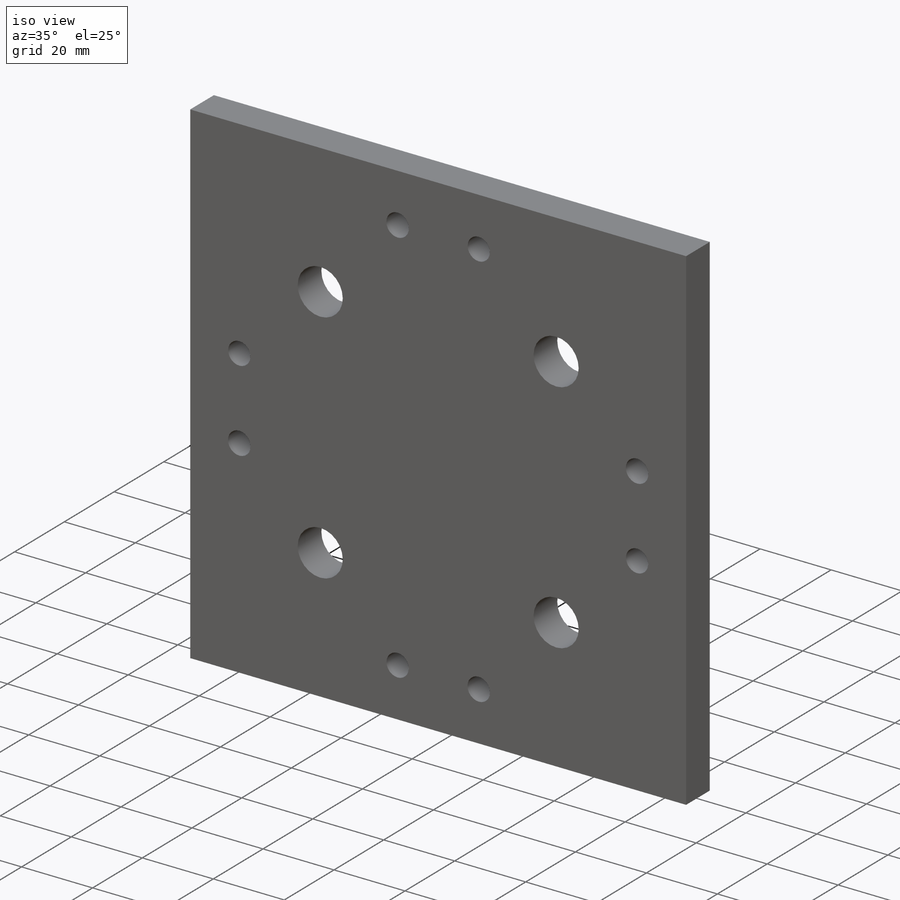
[diagram: iso view]
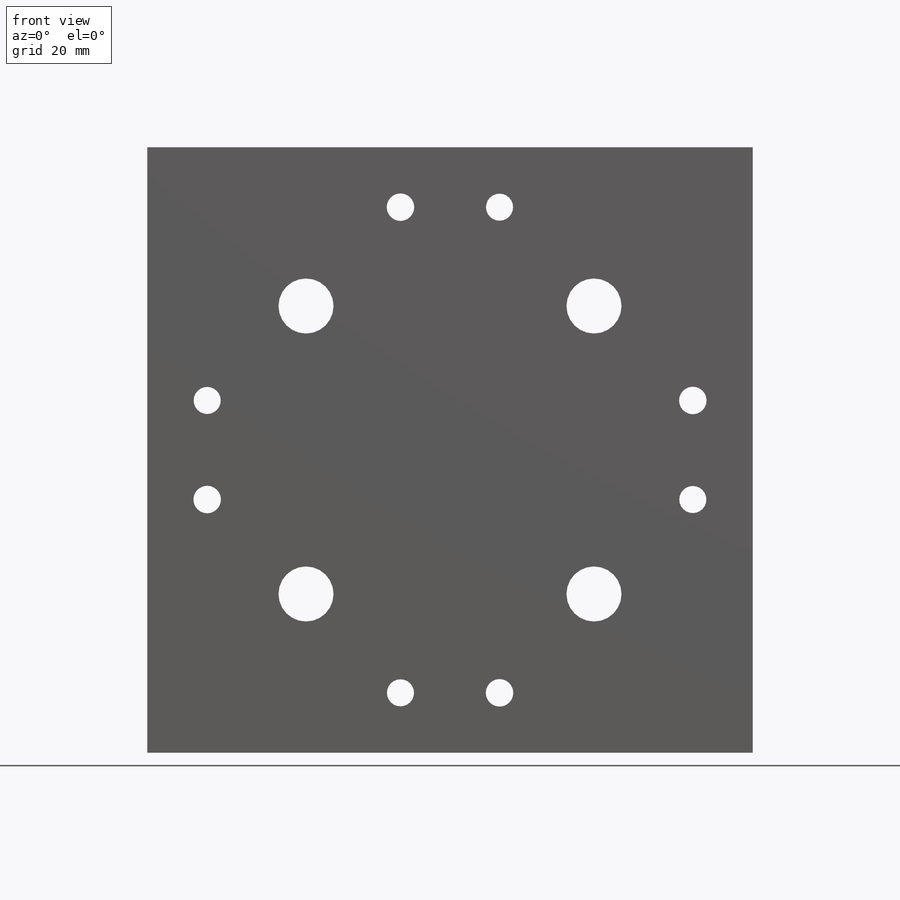
[diagram: front view]
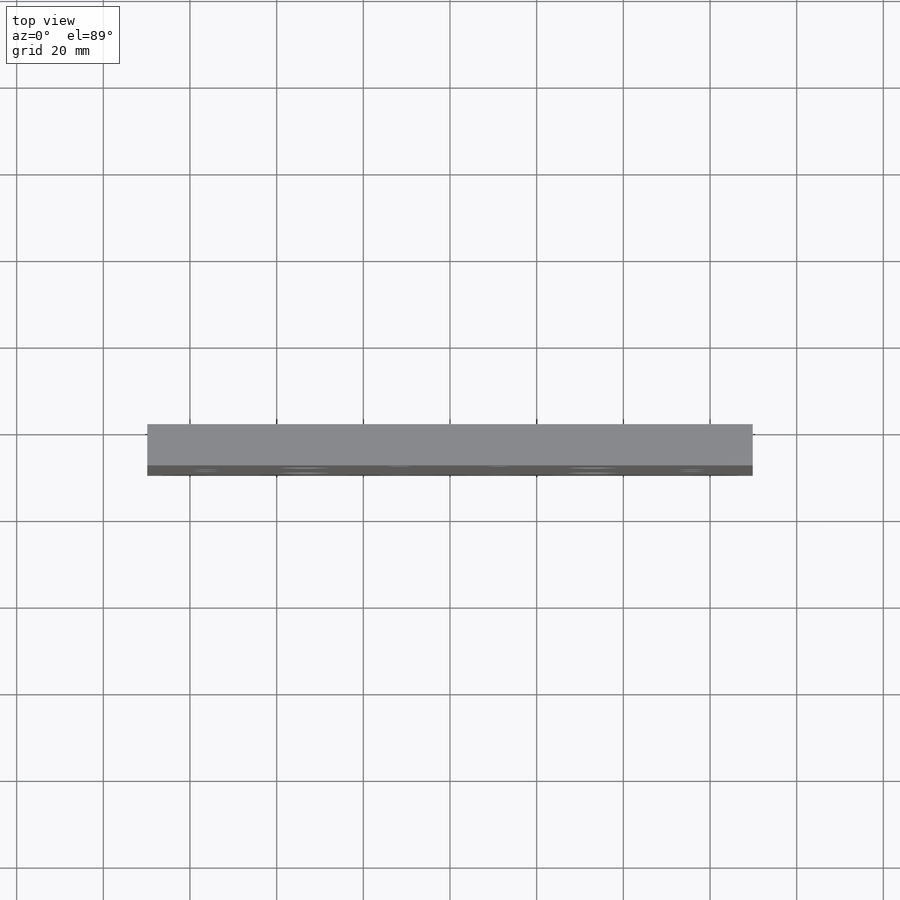
[diagram: top view]
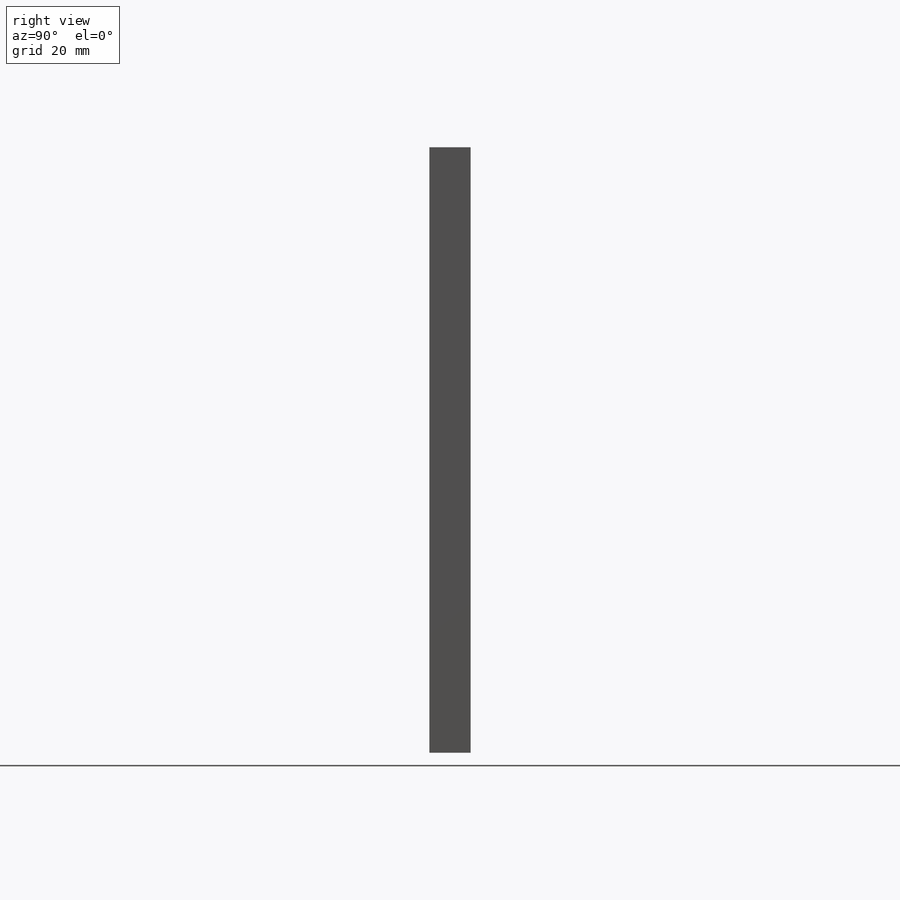
[diagram: right view]
SOLIDWORKS PART (.sldprt)
format: sldprt  version: not decoded by parser v0  size: 230,400 bytes
history: native  units: mm
features: sketch x9, hole x3, material x1, extrude x1, pattern_circular x1, plane x1 (+12 scaffold rows collapsed)
feature tree (28):
  scaffold x12  (default folders/planes/origin — collapsed)
  material  "Material <not specified>"
  sketch  "Sketch1"  dims[D1=139.7mm]
  extrude  "Extrude1"  Depth=9.525mm
  sketch  "Sketch2"  dims[D1=56.0324mm]
  hole  "1/2 (0.5) Diameter Hole1"  Diameter=12.7mm Depth=9.525mm
  sketch  "3DSketch1"
  sketch  "Sketch3"  dims[hole-wizard template sketch: 61 standard entries collapsed; hole parameters above]
  hole  "D (0.246) Diameter Hole1"  Diameter=6.2484mm Depth=33.782mm
  sketch  "3DSketch2"
  sketch  "Sketch4"  dims[hole-wizard template sketch: 46 standard entries collapsed; hole parameters kept: c15.Hole Dia.=6.2484mm c15.Hole Depth=33.782mm c15.D3=~14.816244mm c15.Drill Angle=118.0deg]
  hole  "1/4 (0.25) Diameter Hole1"  Diameter=6.35mm Depth=33.782mm
  sketch  "3DSketch3"
  sketch  "Sketch5"  dims[hole-wizard template sketch: 47 standard entries collapsed; hole parameters kept: c15.Hole Depth=33.782mm c15.D3=~14.816244mm c15.Drill Angle=118.0deg]
  pattern_circular  "CirPattern1"  Count=4 Angle=360deg
  plane  "Plane1"  Offset=50.8mm
  sketch  "Sketch6"  dims[D1=69.85mm]
decode coverage: 11 of 14 modeling features carry decoded parameters
note: ~ marks probable driven/reference dimensions
note: suppression state not decoded; provenance and decode notes live in map.json
